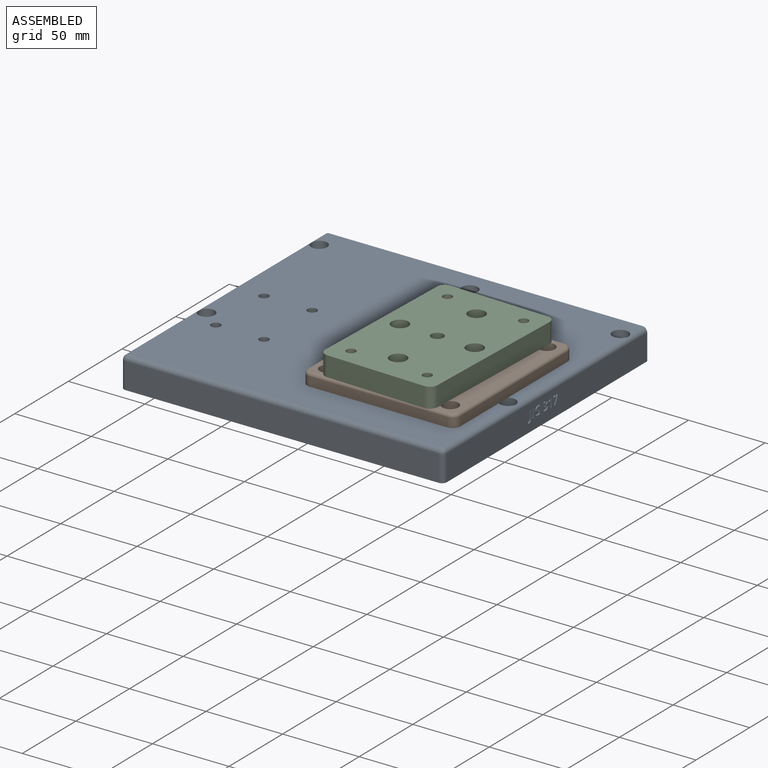
[diagram: assembled view]
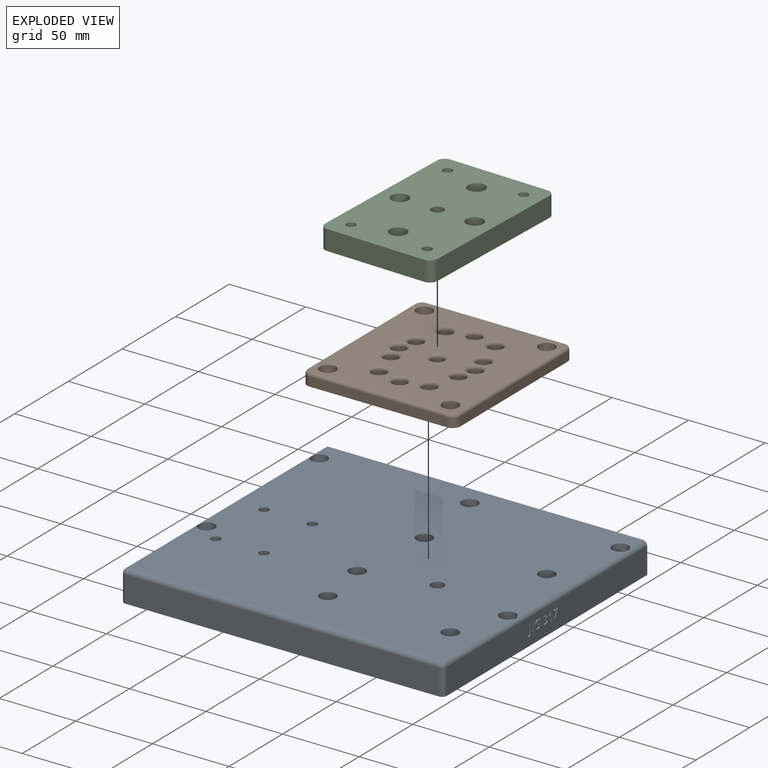
[diagram: exploded view]
GUIDED TOUR — MATED ASSEMBLY (Onshape document d2b5e7d61a329df1927bec0d, AutoMate assembly d2b5e7d61a329df1927bec0d_9d18a94fc6866281a068c96c_7d5c3c58b5b7387aead24961_default)

This assembly has 3 components, labeled P0..P2 below (a component is one placed occurrence of a part; the same part can appear more than once), held together by 2 mates. A mate is a constraint between two components; its type names the relative motion it leaves free:
  FASTENED — locks the two components together rigidly (no relative motion),
  REVOLUTE — leaves rotation about the listed axis free (a hinge).
Axis/direction vectors are unit vectors and 'through' points are millimeter coordinates, both in the assembly's world frame.

MATES
  1. FASTENED "Fastened 1": P1 <-> P0, direction (0.000, 0.000, -1.000) through (-50.44, 64.27, -26.99) mm
  2. REVOLUTE "Revolute 1": P2 <-> P1, axis (0.000, 0.000, -1.000) through (-10.44, 109.27, -18.99) mm

ASSEMBLY ORDER
  1. P1 — the base component [order verified]
  2. P2 [order verified]
  3. P0 [order verified]
Order-tag legend:
  [order verified] — this step's position reverses a verified removal order: the component was checked to insert without passing through the ones already placed.

Of the 3 components, 1 carries the full construction recipe — the FeatureScript program that regenerates the part's solid from scratch; the rest are supplied as boundary geometry only.
Each toured component is shown spotlighted twice — in the assembled view, then in the exploded view, where a leader line traces a displaced component back to its assembled socket (saturated green if recipe-attached, orange if geometry-only; every other component desaturated gray) — followed by its recipe or geometry summary and the mates that hold it.
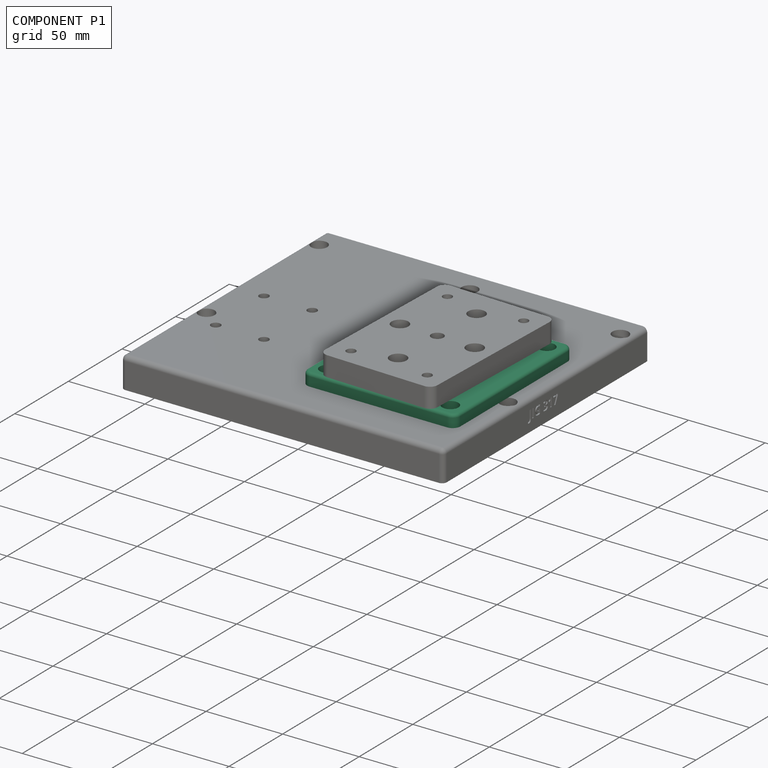
[diagram: component P1 — assembled]
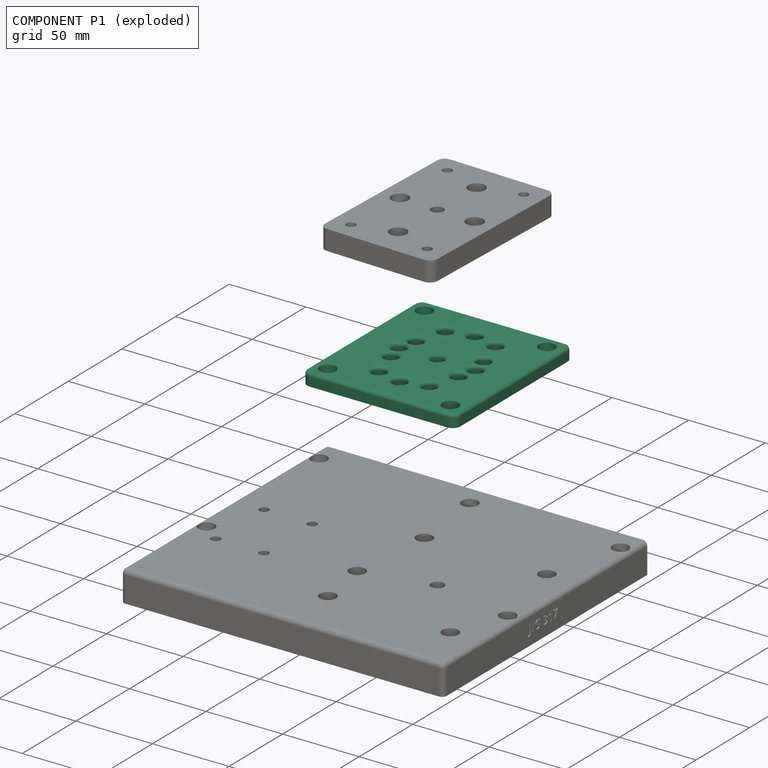
[diagram: component P1 — exploded]
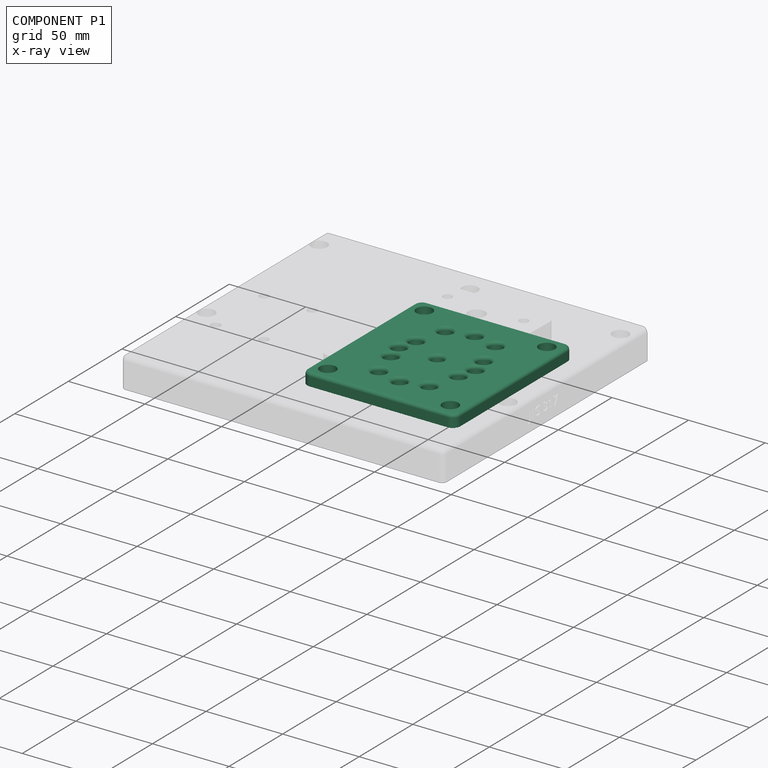
[diagram: component P1 — x-ray view]
COMPONENT P1 — recipe-attached (CADFS 00856947, mesh-verified: the recipe's output STEP matches this component's geometry to below the mesh-comparison resolution (tessellation chordal tolerance ~0.223 mm)).
Held by: FASTENED mate "Fastened 1" to P0; REVOLUTE mate "Revolute 1" to P2.
Construction recipe (FeatureScript — the CAD program that rebuilds this solid; sketch coordinates are in the units given by the * unit suffixes, e.g. mm):

FeatureScript 2656;
import(path : "onshape/std/geometry.fs", version : "2656.0");
import(path : "onshape/std/common.fs", version : "2656.0");
const mm = millimeter;
const VERTEX = EntityType.VERTEX;
const EDGE = EntityType.EDGE;
const FACE = EntityType.FACE;
const BODY = EntityType.BODY;
function v(x, y){return vector(x, y);}
function OD(order){return orderDisambiguation(order);}
function OSD(set){return originalSetDisambiguation(set);}
function TD(topology){return topologyDisambiguation(topology);}
function TDD(query){return trueDependencyDisambiguation(query);}
function sQuery(a, b, c) {return sketchEntityQuery(a, b, c);}

annotation { "Feature Type Name" : "Feature", "Feature Type Description" : "" }
export const myFeature = defineFeature(function(context is Context, id is Id, definition is map)
    precondition{}
    {
        {
            var Q0;
            Q0=qCreatedBy(makeId("Front.planeOp"),FACE);
            var sketch = newSketch(context, id + "F0", { "sketchPlane" : qUnion([Q0])});
            skLineSegment(sketch, "E0.bottom", {"start": v(0, 0) * mm, "end": v(-100, 0) * mm});
            skLineSegment(sketch, "E0.top", {"start": v(0, 110) * mm, "end": v(-100, 110) * mm});
            skLineSegment(sketch, "E0.left", {"start": v(0, 0) * mm, "end": v(0, 110) * mm});
            skLineSegment(sketch, "E0.right", {"start": v(-100, 0) * mm, "end": v(-100, 110) * mm});
            skCircle(sketch, "E1", {"center": v(-50, 55) * mm, "radius": 4.1 * mm});
            skPoint(sketch, "E1.centerSnap0", {"position": v(-50, 0) * mm});
            skPoint(sketch, "E1.centerSnap1", {"position": v(-100, 55) * mm});
            skLineSegment(sketch, "E2", {"start": v(-50, 55) * mm, "end": v(-25, 55) * mm, "construction": true});
            skCircle(sketch, "E3", {"center": v(-50, 90) * mm, "radius": 4.5 * mm});
            skLineSegment(sketch, "E4", {"start": v(-50, 55) * mm, "end": v(-50, 90) * mm, "construction": true});
            skCircle(sketch, "E5.MirrorC", {"center": v(-50, 20) * mm, "radius": 4.5 * mm});
            skCircle(sketch, "E6", {"center": v(-25, 55) * mm, "radius": 4.5 * mm});
            skCircle(sketch, "E7.MirrorC", {"center": v(-75, 55) * mm, "radius": 4.5 * mm});
            skLineSegment(sketch, "E8", {"start": v(-50, 55) * mm, "end": v(-33.57, 85.9) * mm, "construction": true});
            skCircle(sketch, "E9", {"center": v(-33.57, 85.9) * mm, "radius": 4.5 * mm});
            skCircle(sketch, "E10.MirrorC", {"center": v(-33.57, 24.1) * mm, "radius": 4.5 * mm});
            skCircle(sketch, "E11.MirrorC", {"center": v(-66.43, 85.9) * mm, "radius": 4.5 * mm});
            skCircle(sketch, "E12.MirrorC", {"center": v(-66.43, 24.1) * mm, "radius": 4.5 * mm});
            skLineSegment(sketch, "E13", {"start": v(-50, 55) * mm, "end": v(-72.07, 43.26) * mm, "construction": true});
            skCircle(sketch, "E14", {"center": v(-72.07, 43.26) * mm, "radius": 4.5 * mm});
            skCircle(sketch, "E15.MirrorC", {"center": v(-27.93, 43.26) * mm, "radius": 4.5 * mm});
            skCircle(sketch, "E16.MirrorC", {"center": v(-27.93, 66.74) * mm, "radius": 4.5 * mm});
            skCircle(sketch, "E17.MirrorC", {"center": v(-72.07, 66.74) * mm, "radius": 4.5 * mm});
            skLineSegment(sketch, "E18", {"start": v(-50, 55) * mm, "end": v(-50, 100) * mm});
            skLineSegment(sketch, "E19", {"start": v(-50, 100) * mm, "end": v(-10, 100) * mm});
            skLineSegment(sketch, "E20", {"start": v(-10, 100) * mm, "end": v(-10, 10) * mm});
            skLineSegment(sketch, "E21.MirrorCS", {"start": v(-90, 100) * mm, "end": v(-90, 10) * mm});
            skSolve(sketch);
        }
        {
            var Q0;
            Q0=makeQuery(id+"F0.imprint","IMPRINT",FACE,{"disambiguationData":[TD([[makeQuery(id+"F0.imprint","IMPRINT",EDGE,{"derivedFrom":sQuery(id+"F0.wireOp",EDGE,"E0.bottom")}),-1.0]])]});
            extrude(context, id + "F1", {"entities" : qUnion([Q0]), "oppositeDirection" : true, "depth" : 8 * mm, "offsetDistance" : 25 * mm});
        }
        {
            var Q0;
            Q0=makeQuery(id+"F1.opExtrude","CAP_FACE",FACE,{"disambiguationData":[OSD([sQuery(id+"F0.wireOp",EDGE,"E0.bottom"),sQuery(id+"F0.wireOp",EDGE,"E0.top"),sQuery(id+"F0.wireOp",EDGE,"E0.left"),sQuery(id+"F0.wireOp",EDGE,"E0.right"),sQuery(id+"F0.wireOp",EDGE,"E1"),sQuery(id+"F0.wireOp",EDGE,"E3"),sQuery(id+"F0.wireOp",EDGE,"E5.MirrorC"),sQuery(id+"F0.wireOp",EDGE,"E6"),sQuery(id+"F0.wireOp",EDGE,"E7.MirrorC"),sQuery(id+"F0.wireOp",EDGE,"E9"),sQuery(id+"F0.wireOp",EDGE,"E10.MirrorC"),sQuery(id+"F0.wireOp",EDGE,"E11.MirrorC"),sQuery(id+"F0.wireOp",EDGE,"E12.MirrorC"),sQuery(id+"F0.wireOp",EDGE,"E14"),sQuery(id+"F0.wireOp",EDGE,"E15.MirrorC"),sQuery(id+"F0.wireOp",EDGE,"E16.MirrorC"),sQuery(id+"F0.wireOp",EDGE,"E17.MirrorC")])],"isStart":true});
            fillet(context, id + "F2", {"entities" : qUnion([Q0]), "tangentPropagation" : true, "radius" : 2 * mm, "defaultsChanged" : true, "vertexSettings" : [], "allowEdgeOverflow" : false});
        }
        {
            var Q0;
            Q0=sQuery(id+"F0.wireOp",VERTEX,"E21.MirrorCS.start");
            var Q1;
            Q1=sQuery(id+"F0.wireOp",VERTEX,"E21.MirrorCS.end");
            var Q2;
            Q2=sQuery(id+"F0.wireOp",VERTEX,"E20.end");
            var Q3;
            Q3=sQuery(id+"F0.wireOp",VERTEX,"E19.end");
            var Q4;
            Q4=makeQuery(id+"F1.opExtrude","SWEPT_BODY",BODY,{"disambiguationData":[OSD([sQuery(id+"F0.wireOp",EDGE,"E0.bottom"),sQuery(id+"F0.wireOp",EDGE,"E0.top"),sQuery(id+"F0.wireOp",EDGE,"E0.left"),sQuery(id+"F0.wireOp",EDGE,"E0.right"),sQuery(id+"F0.wireOp",EDGE,"E1"),sQuery(id+"F0.wireOp",EDGE,"E3"),sQuery(id+"F0.wireOp",EDGE,"E5.MirrorC"),sQuery(id+"F0.wireOp",EDGE,"E6"),sQuery(id+"F0.wireOp",EDGE,"E7.MirrorC"),sQuery(id+"F0.wireOp",EDGE,"E9"),sQuery(id+"F0.wireOp",EDGE,"E10.MirrorC"),sQuery(id+"F0.wireOp",EDGE,"E11.MirrorC"),sQuery(id+"F0.wireOp",EDGE,"E12.MirrorC"),sQuery(id+"F0.wireOp",EDGE,"E14"),sQuery(id+"F0.wireOp",EDGE,"E15.MirrorC"),sQuery(id+"F0.wireOp",EDGE,"E16.MirrorC"),sQuery(id+"F0.wireOp",EDGE,"E17.MirrorC")])]});
            hole(context, id + "F3", {"style" : HoleStyle.C_BORE, "endStyle" : HoleEndStyle.BLIND, "holeDiameter" : 6.2 * mm, "cBoreDiameter" : 10.5 * mm, "cBoreDepth" : 6.1 * mm, "majorDiameter" : 5 * mm, "holeDepth" : 8 * mm, "isTappedThrough" : true, "tappedDepth" : 9.9 * mm, "tapClearance" : 3, "locations" : qUnion([Q0, Q1, Q2, Q3]), "scope" : qUnion([Q4]), "startStyle" : HoleStartStyle.PART});
        }
        {
            var Q0;
            Q0=makeQuery(id+"F1.opExtrude","SWEPT_EDGE",EDGE,{"disambiguationData":[OSD([sQuery(id+"F0.wireOp",EDGE,"E0.bottom"),sQuery(id+"F0.wireOp",EDGE,"E0.left")])]});
            var Q1;
            Q1=makeQuery(id+"F1.opExtrude","SWEPT_EDGE",EDGE,{"disambiguationData":[OSD([sQuery(id+"F0.wireOp",EDGE,"E0.bottom"),sQuery(id+"F0.wireOp",EDGE,"E0.right")])]});
            var Q2;
            Q2=makeQuery(id+"F1.opExtrude","SWEPT_EDGE",EDGE,{"disambiguationData":[OSD([sQuery(id+"F0.wireOp",EDGE,"E0.top"),sQuery(id+"F0.wireOp",EDGE,"E0.right")])]});
            var Q3;
            Q3=makeQuery(id+"F1.opExtrude","SWEPT_EDGE",EDGE,{"disambiguationData":[OSD([sQuery(id+"F0.wireOp",EDGE,"E0.top"),sQuery(id+"F0.wireOp",EDGE,"E0.left")])]});
            fillet(context, id + "F4", {"entities" : qUnion([Q0, Q1, Q2, Q3]), "tangentPropagation" : true, "radius" : 5 * mm, "defaultsChanged" : false, "vertexSettings" : [], "allowEdgeOverflow" : false});
        }
    });
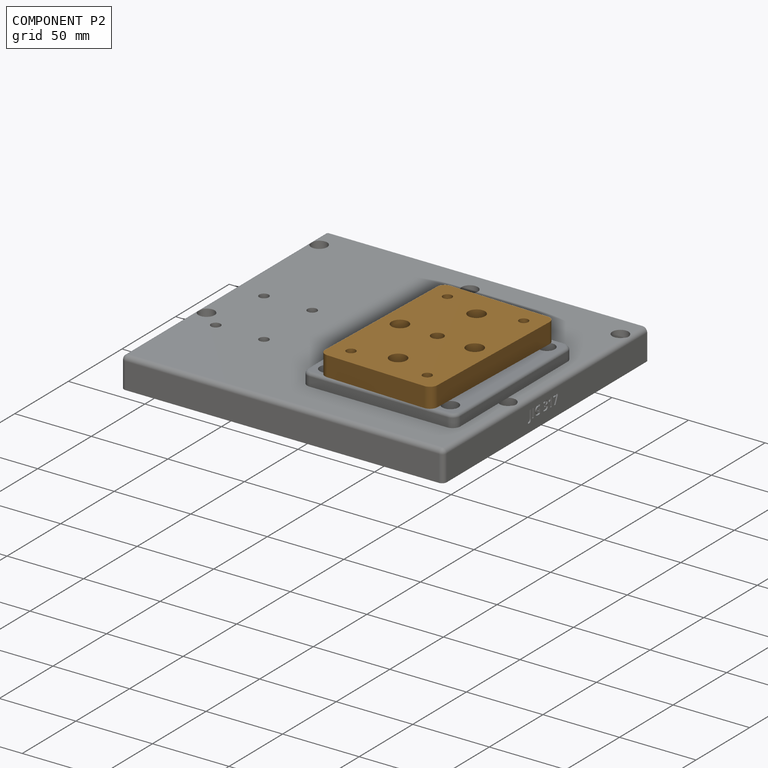
[diagram: component P2 — assembled]
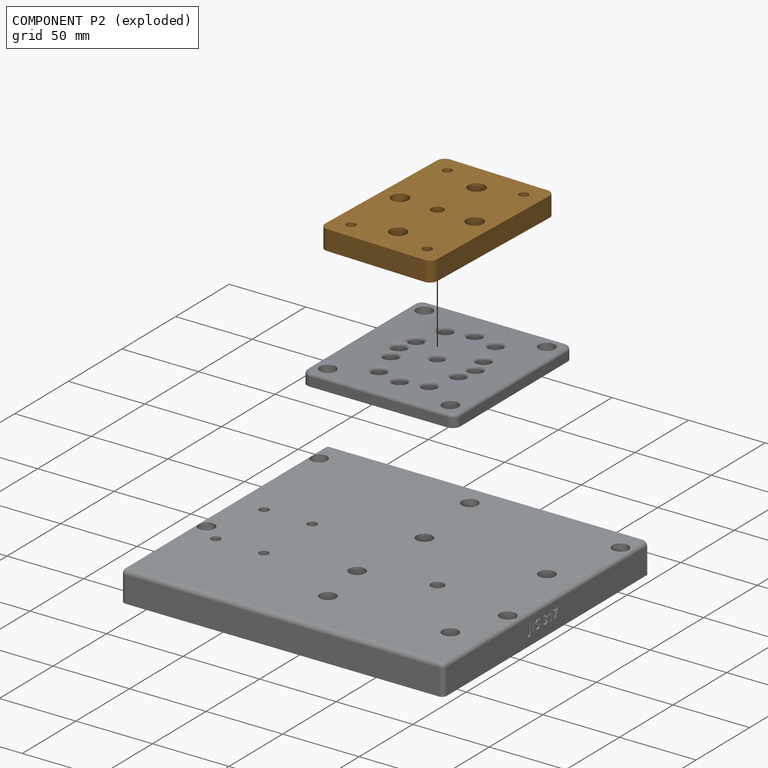
[diagram: component P2 — exploded]
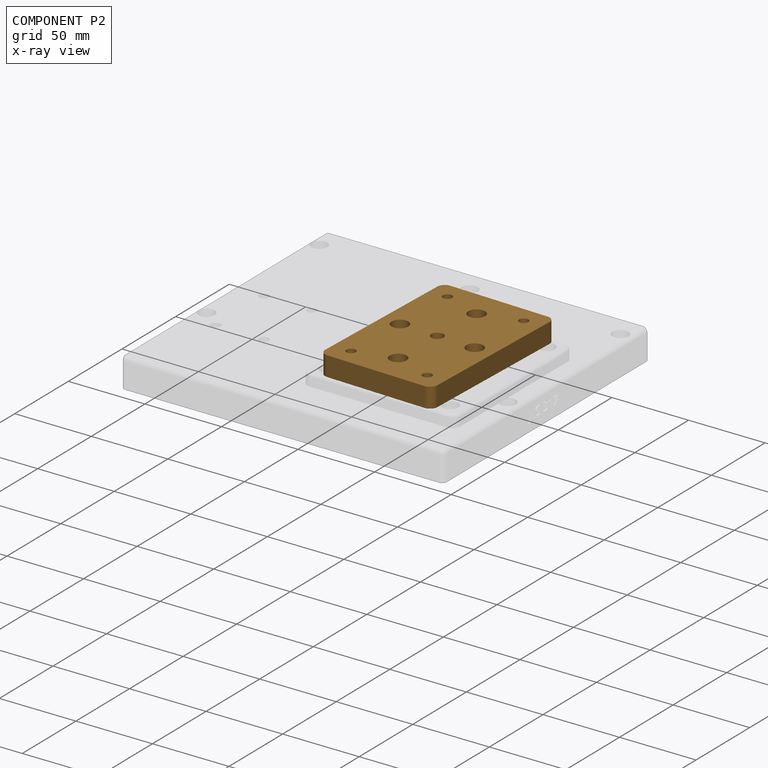
[diagram: component P2 — x-ray view]
COMPONENT P2 — geometry summary (no construction recipe available for this part):
  bounding box: 110.0 x 75.0 x 13.0 mm
  B-rep topology: 1 solid, 63 faces, 304 edges
  volume: 99133 mm^3 (92% of its bounding box)
  symmetry: 2-fold rotationally symmetric about the z axis; mirror-symmetric across its x mid-plane, y mid-plane
Held by: REVOLUTE mate "Revolute 1" to P1.
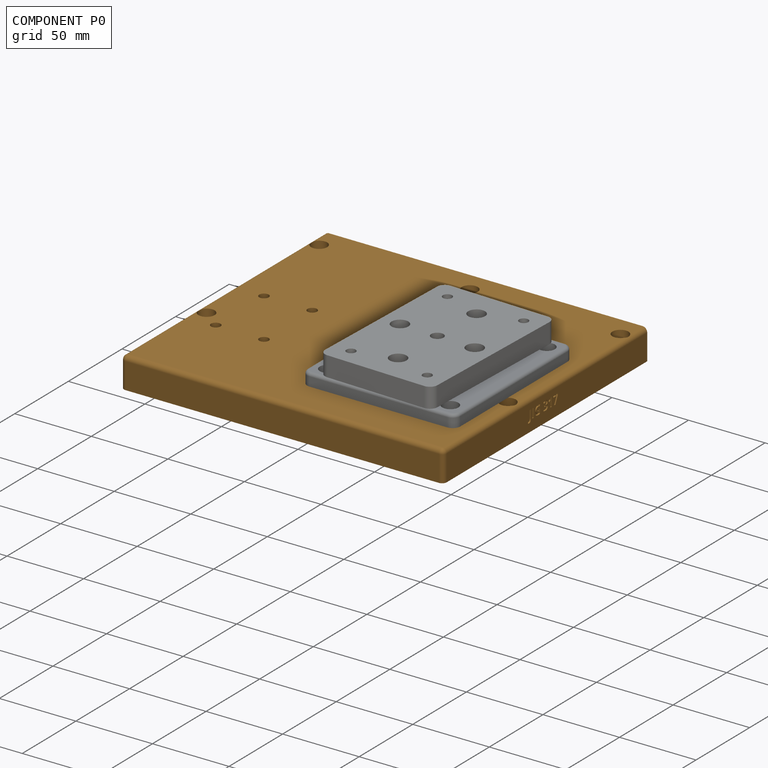
[diagram: component P0 — assembled]
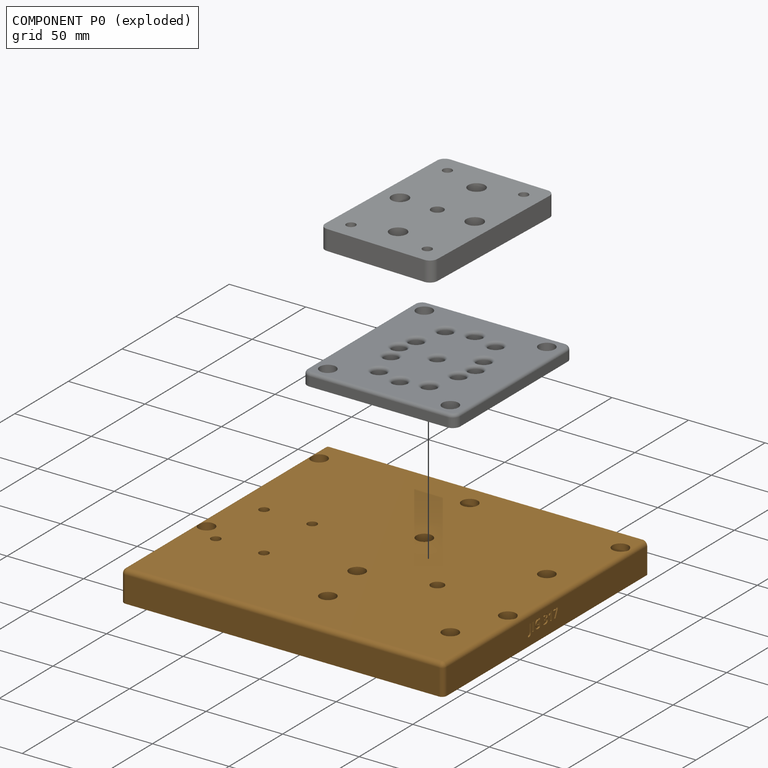
[diagram: component P0 — exploded]
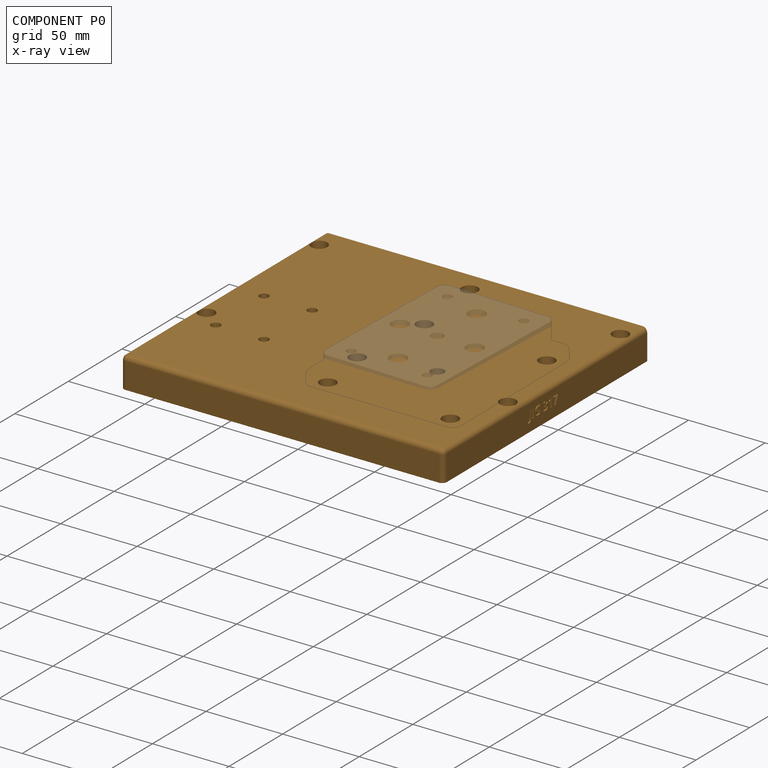
[diagram: component P0 — x-ray view]
COMPONENT P0 — geometry summary (no construction recipe available for this part):
  bounding box: 210.8 x 190.0 x 20.0 mm
  B-rep topology: 1 solid, 139 faces, 756 edges
  volume: 782899 mm^3 (98% of its bounding box)
Held by: FASTENED mate "Fastened 1" to P1.
PROVENANCE & LICENSES
Assembly (occurrences, transforms, mates, per-part STEP geometry): AutoMate dataset, Zenodo record 7776208, CC0.
Construction recipes: CADFS (HuggingFace VladPyatov/CADFS, CC-BY-4.0, layered over the ABC dataset), FeatureScript reconstruction programs keyed by ABC model id.
Join: ABC meta listings map ABC model id -> Onshape documentId; within a shared document, parts are matched by geometric signature (bounding-box dims + volume at 0.1% relative tolerance, exact B-rep face/solid counts).
Verification: 1 of this assembly's 3 components carries a recipe attachment, and every attachment is mesh-verified: the CADFS STEP and the AutoMate member STEP were compared as meshes in their shared local frame (symmetric sampled-point-to-mesh distance); worst across the 1 attachment: below the mesh-comparison resolution (tessellation chordal tolerance ~0.223 mm) on a 149 mm part.
Renders: orthographic iso camera (az 35 / el 25); the floor grid conveys scale (grid pitch printed in each image; no ruler). In the exploded view each component is displaced by its stored offset vector: the offsets alone carry the explosion direction (mate normal/axis signs are not orientation cues and do not encode it), and separation distances are assigned per mate-chain, not proportionally to assembly-order depth.
